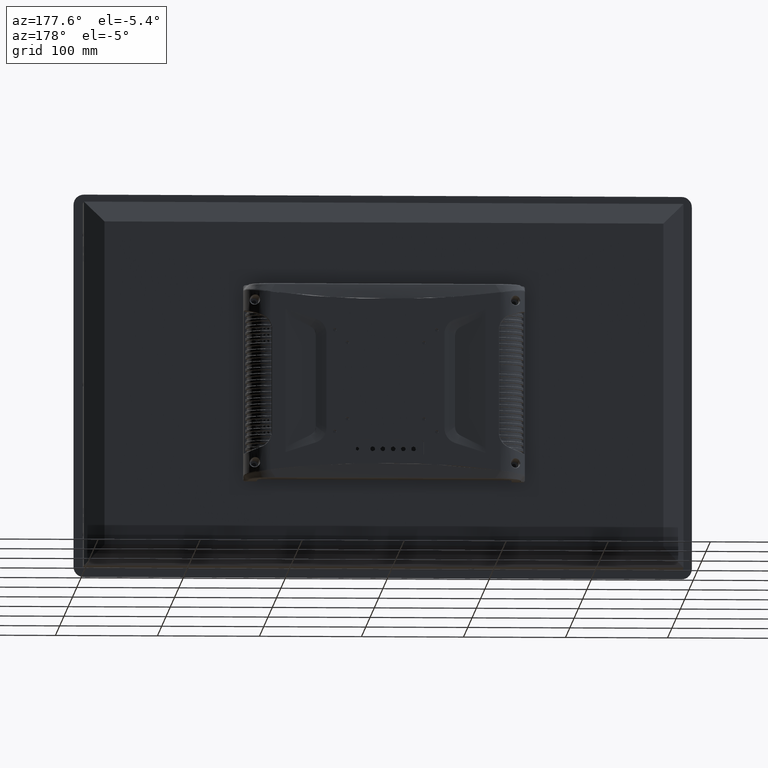
[diagram: clean part render]
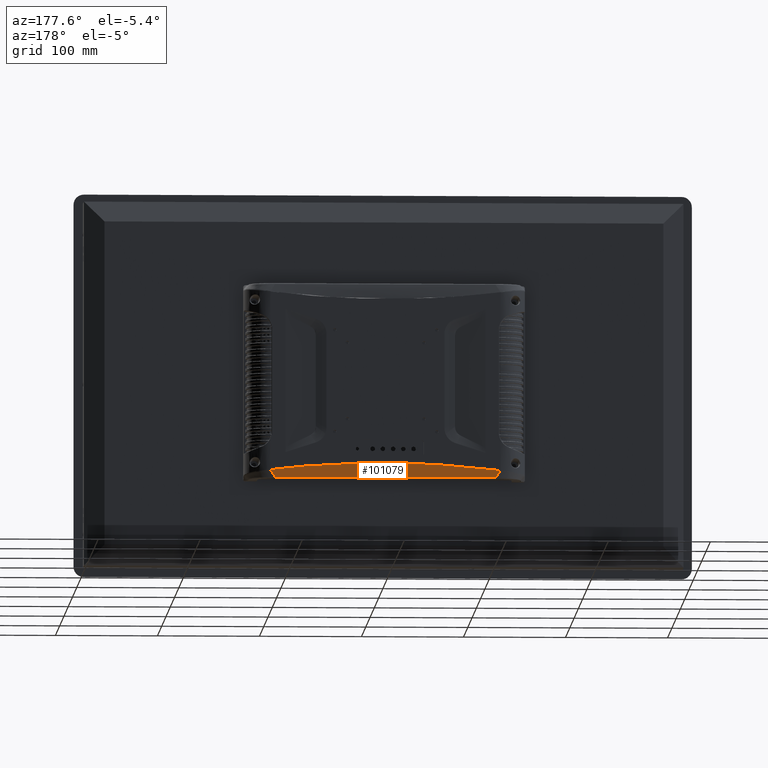
[diagram: same view with one face highlighted and labeled with its STEP entity id]
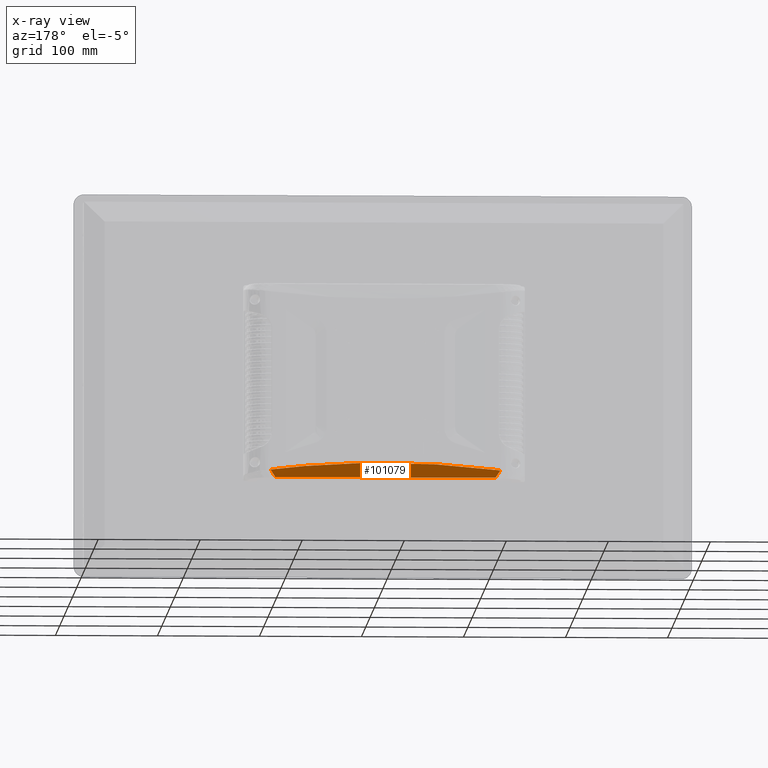
[diagram: x-ray of the same camera — body ghosted, the highlighted face saturated]
A machine part, auxiliary view. The second image highlights one B-rep face of the part: STEP entity #101079.
The next image is the same camera in x-ray: the body ghosted, the highlighted face saturated — about 0% of this face is hidden behind the body in this view.
In plain terms, the highlighted face is a freeform B-spline surface patch.
Its self-contained STEP definition (entity closure, byte-faithful):
#611 = VERTEX_POINT ( 'NONE', #91620 ) ;
#3746 = CARTESIAN_POINT ( 'NONE',  ( 115.9041079714904896, 60.56836528046000012, -87.72951740975457824 ) ) ;
#4114 = CARTESIAN_POINT ( 'NONE',  ( 114.0798286738208134, 60.05690783537000499, -90.36405418386432586 ) ) ;
#4382 = CARTESIAN_POINT ( 'NONE',  ( 109.5495207276544249, 59.60385091230349275, -92.54911158338154564 ) ) ;
#5727 = CARTESIAN_POINT ( 'NONE',  ( -84.53039714564710039, 60.49914019592802106, -84.64762496446412854 ) ) ;
#5938 = CARTESIAN_POINT ( 'NONE',  ( -110.4438447046482139, 59.03399294519000051, -95.63585468789437982 ) ) ;
#6297 = CARTESIAN_POINT ( 'NONE',  ( 37.28328646166766447, 59.03399294519000051, -95.50423110800319648 ) ) ;
#7201 = CARTESIAN_POINT ( 'NONE',  ( -56.53284913984147408, 60.50440234142563156, -82.45258613785468071 ) ) ;
#7323 = CARTESIAN_POINT ( 'NONE',  ( 108.0138415128456444, 59.16321139242381122, -94.93013978281884135 ) ) ;
#7909 = CARTESIAN_POINT ( 'NONE',  ( 51.46378806660304406, 60.50372079838483330, -82.08439155980403257 ) ) ;
#8416 = CARTESIAN_POINT ( 'NONE',  ( -90.02188901099995633, 59.13842805803961511, -94.89805126138999469 ) ) ;
#9017 = B_SPLINE_CURVE_WITH_KNOTS ( 'NONE', 3,
 ( #12938, #97937, #4382, #72429 ),
 .UNSPECIFIED., .F., .F.,
 ( 4, 4 ),
 ( 0.0000000000000000000, 1.000000000000000000 ),
 .UNSPECIFIED. ) ;
#12313 = CARTESIAN_POINT ( 'NONE',  ( -117.4137043968193126, 60.56836528046000012, -87.92614696338448255 ) ) ;
#12938 = CARTESIAN_POINT ( 'NONE',  ( 112.6208281790857768, 60.48509479061475247, -87.78699686294423543 ) ) ;
#13413 = CARTESIAN_POINT ( 'NONE',  ( -114.0929679925665567, 60.05690783537000499, -90.36160066381438583 ) ) ;
#14315 = CARTESIAN_POINT ( 'NONE',  ( -57.80748770651187129, 60.50426660309774718, -82.53346466161497119 ) ) ;
#15032 = CARTESIAN_POINT ( 'NONE',  ( -23.03735192105608931, 60.50607125909361628, -80.96227866097935078 ) ) ;
#15522 = CARTESIAN_POINT ( 'NONE',  ( 17.99800927257813754, 59.10142410780321853, -94.84995554884822866 ) ) ;
#15757 = CARTESIAN_POINT ( 'NONE',  ( -0.01958239028013692914, 60.50614677585779333, -80.68823496223429004 ) ) ;
#21965 = CARTESIAN_POINT ( 'NONE',  ( 112.6208281790857768, 60.48509479061475247, -87.78699686294423543 ) ) ;
#22813 = CARTESIAN_POINT ( 'NONE',  ( -112.6319617010832417, 60.48472011689666772, -87.78700870752710728 ) ) ;
#23579 = CARTESIAN_POINT ( 'NONE',  ( -56.61811702433575277, 60.50439348346828439, -82.45794697137968399 ) ) ;
#24300 = CARTESIAN_POINT ( 'NONE',  ( -112.6319617010832417, 60.48472011689666772, -87.78700870752710728 ) ) ;
#25751 = CARTESIAN_POINT ( 'NONE',  ( 27.62791122544825484, 60.50555502281591203, -81.03477886651394613 ) ) ;
#28518 = VERTEX_POINT ( 'NONE', #22813 ) ;
#29048 = CARTESIAN_POINT ( 'NONE',  ( 39.57199775014528598, 60.56836528046000012, -77.63677196985473472 ) ) ;
#31396 = CARTESIAN_POINT ( 'NONE',  ( -79.46034797451103771, 60.50055252576350995, -84.17668534438823258 ) ) ;
#31748 = CARTESIAN_POINT ( 'NONE',  ( -59.15675759345285911, 60.50411503931940160, -82.62081414589778205 ) ) ;
#32108 = CARTESIAN_POINT ( 'NONE',  ( -5.378778841326772309, 60.50617020624021336, -80.70147766042842363 ) ) ;
#32982 = CARTESIAN_POINT ( 'NONE',  ( -63.01708825651365942, 59.11785007348881749, -94.87104025709037103 ) ) ;
#37575 = CARTESIAN_POINT ( 'NONE',  ( -115.9175296365756793, 60.56836528046000012, -87.72447365176438439 ) ) ;
#39005 = EDGE_CURVE ( 'NONE', #28518, #50463, #62405, .T. ) ;
#39042 = CARTESIAN_POINT ( 'NONE',  ( -115.5685024855587528, 60.05690783537000499, -90.49692045849353406 ) ) ;
#39779 = CARTESIAN_POINT ( 'NONE',  ( -37.29519861133420733, 59.03399294519000051, -95.50515115820491019 ) ) ;
#40304 = CARTESIAN_POINT ( 'NONE',  ( -98.57221729250376541, 60.49413577511622719, -86.05646525584127460 ) ) ;
#40683 = CARTESIAN_POINT ( 'NONE',  ( -0.6862895078196311616, 60.50615072305299691, -80.68839814937412314 ) ) ;
#41053 = CARTESIAN_POINT ( 'NONE',  ( -2.713046871643993274, 60.50616094880494700, -80.69147793547531933 ) ) ;
#41186 = CARTESIAN_POINT ( 'NONE',  ( -18.00874092793451098, 59.10224996810566722, -94.85130288426360323 ) ) ;
#42275 = CARTESIAN_POINT ( 'NONE',  ( -72.01872537172764055, 59.12319757741412474, -94.87785965320331627 ) ) ;
#45384 = CARTESIAN_POINT ( 'NONE',  ( -112.6319617010832417, 60.48472011689666772, -87.78700870752710728 ) ) ;
#48124 = CARTESIAN_POINT ( 'NONE',  ( -56.49019955593841757, 60.50440676015802666, -82.44990740240737637 ) ) ;
#48859 = CARTESIAN_POINT ( 'NONE',  ( -56.45972914319172276, 60.50440991218710707, -82.44799471132387225 ) ) ;
#49211 = CARTESIAN_POINT ( 'NONE',  ( -0.1759236123590948442, 60.50614772697095134, -80.68823561412413881 ) ) ;
#49570 = CARTESIAN_POINT ( 'NONE',  ( -0.09071967096942823439, 60.50614721052667022, -80.68823244866527489 ) ) ;
#49710 = CARTESIAN_POINT ( 'NONE',  ( -99.02342964115852908, 59.14817876829094700, -94.91101315615802037 ) ) ;
#50463 = VERTEX_POINT ( 'NONE', #21965 ) ;
#50805 = EDGE_LOOP ( 'NONE', ( #86654, #52919, #94124, #89250 ) ) ;
#51400 = CARTESIAN_POINT ( 'NONE',  ( 102.6919010256160050, 60.49159114882736787, -86.55444032438323632 ) ) ;
#52919 = ORIENTED_EDGE ( 'NONE', *, *, #39005, .T. ) ;
#56647 = CARTESIAN_POINT ( 'NONE',  ( -42.23512382077966265, 60.50553848752720398, -81.62063869260747140 ) ) ;
#56861 = CARTESIAN_POINT ( 'NONE',  ( -112.2684063486573933, 59.54545039028000275, -92.99872767585441125 ) ) ;
#58087 = CARTESIAN_POINT ( 'NONE',  ( -0.02983491466011461285, 60.50614683867206622, -80.68823435073272776 ) ) ;
#58268 = B_SPLINE_SURFACE_WITH_KNOTS ( 'NONE', 3, 3, ( 
 ( #71442, #3746, #29048, #88471, #37575, #12313 ),
 ( #71796, #4114, #64693, #99516, #13413, #39042 ),
 ( #91348, #89898, #90257, #72899, #56861, #82140 ),
 ( #98394, #82849, #6297, #39779, #5938, #107694 ) ),
 .UNSPECIFIED., .F., .F., .F.,
 ( 4, 4 ),
 ( 4, 1, 1, 4 ),
 ( 0.0000000000000000000, 1.000000000000000000 ),
 ( 0.0000000000000000000, 0.01922153162013500588, 0.9807695147083179688, 1.000000000000000000 ),
 .UNSPECIFIED. ) ;
#58578 = CARTESIAN_POINT ( 'NONE',  ( -36.01212420722269769, 59.10558328600701827, -94.85543498623323444 ) ) ;
#58829 = CARTESIAN_POINT ( 'NONE',  ( 80.87465701876691071, 60.49889853165560538, -84.28680793347771782 ) ) ;
#59325 = CARTESIAN_POINT ( 'NONE',  ( 72.00797051463948151, 59.12055402015225525, -94.87306697802499400 ) ) ;
#62405 = B_SPLINE_CURVE_WITH_KNOTS ( 'NONE', 3,
 ( #24300, #65953, #40304, #5727, #31396, #83709, #90775, #65589, #82654, #31748, #14315, #99674, #74868, #23579, #7201, #48124, #91866, #48859, #66667, #108208, #107476, #56647, #65226, #15032, #74505, #73792, #82994, #32108, #41053, #91496, #40683, #100027, #49211, #49570, #108924, #58087, #15757, #84455, #25751, #7909, #67413, #58829, #85181, #51400, #92948, #67789 ),
 .UNSPECIFIED., .F., .F.,
 ( 4, 2, 2, 2, 1, 1, 1, 1, 1, 1, 1, 1, 1, 2, 2, 2, 2, 2, 1, 1, 1, 1, 1, 1, 1, 2, 2, 2, 2, 2, 4 ),
 ( 0.0000000000000000000, 0.1250000000000218436, 0.1875000000000328904, 0.2187500000000383860, 0.2343750000000411615, 0.2421875000000425493, 0.2460937500000431877, 0.2480468750000435485, 0.2490234375000436873, 0.2495117187500437705, 0.2497558593750438261, 0.2498779296875438816, 0.2499389648437939093, 0.2499694824219188816, 0.2500000000000438538, 0.3750000000000365263, 0.4375000000000328626, 0.4687500000000310307, 0.4843750000000300870, 0.4921875000000295874, 0.4960937500000294209, 0.4980468750000293099, 0.4990234375000292544, 0.4995117187500291989, 0.4997558593750291989, 0.4998779296875291989, 0.5000000000000290878, 0.6250000000000218714, 0.7500000000000145439, 0.8750000000000073275, 1.000000000000000000 ),
 .UNSPECIFIED. ) ;
#62738 = EDGE_CURVE ( 'NONE', #99734, #28518, #71945, .T. ) ;
#64693 = CARTESIAN_POINT ( 'NONE',  ( 38.80909398731608917, 60.05690783537000499, -83.59259168257756301 ) ) ;
#65226 = CARTESIAN_POINT ( 'NONE',  ( -28.12455167050657323, 60.50597236681172575, -81.10978694625205776 ) ) ;
#65589 = CARTESIAN_POINT ( 'NONE',  ( -64.05391768902710226, 60.50347714367929086, -82.95626616739443193 ) ) ;
#65953 = CARTESIAN_POINT ( 'NONE',  ( -106.3755575169719094, 60.48977625283447423, -86.98707808286562226 ) ) ;
#66437 = CARTESIAN_POINT ( 'NONE',  ( 99.01260125412261459, 59.14640201272587205, -94.90627334838440277 ) ) ;
#66667 = CARTESIAN_POINT ( 'NONE',  ( -56.45363448339175250, 60.50441054221479931, -82.44761223526754179 ) ) ;
#67413 = CARTESIAN_POINT ( 'NONE',  ( 62.11278960448815667, 60.50238950015273076, -82.78852366607306124 ) ) ;
#67789 = CARTESIAN_POINT ( 'NONE',  ( 112.6208281790857768, 60.48509479061475247, -87.78699686294423543 ) ) ;
#71442 = CARTESIAN_POINT ( 'NONE',  ( 117.3995775065985043, 60.56836528046000012, -87.93116068529023721 ) ) ;
#71796 = CARTESIAN_POINT ( 'NONE',  ( 115.5546704565763179, 60.05690783537000499, -90.49934174488862482 ) ) ;
#71945 = B_SPLINE_CURVE_WITH_KNOTS ( 'NONE', 3,
 ( #105063, #79569, #104690, #45384 ),
 .UNSPECIFIED., .F., .F.,
 ( 4, 4 ),
 ( 0.0000000000000000000, 1.000000000000000000 ),
 .UNSPECIFIED. ) ;
#72429 = CARTESIAN_POINT ( 'NONE',  ( 108.0138415128456444, 59.16321139242381122, -94.93013978281884135 ) ) ;
#72899 = CARTESIAN_POINT ( 'NONE',  ( -38.05822550651923564, 59.54545039028000275, -89.54842980656655982 ) ) ;
#73792 = CARTESIAN_POINT ( 'NONE',  ( -12.00024453583339756, 60.50616614182836628, -80.76178367220077803 ) ) ;
#74505 = CARTESIAN_POINT ( 'NONE',  ( -14.83140767753079992, 60.50615099629709448, -80.80400080188977086 ) ) ;
#74868 = CARTESIAN_POINT ( 'NONE',  ( -56.78852765982627204, 60.50437568558309920, -82.46868205828836551 ) ) ;
#75374 = CARTESIAN_POINT ( 'NONE',  ( 90.01108865194349562, 59.13617918386461270, -94.89312335153117317 ) ) ;
#79569 = CARTESIAN_POINT ( 'NONE',  ( -109.5604830116319448, 59.60352150908673963, -92.55067430739646284 ) ) ;
#82140 = CARTESIAN_POINT ( 'NONE',  ( -113.7233005742981504, 59.54545039028000275, -93.06769395360257136 ) ) ;
#82654 = CARTESIAN_POINT ( 'NONE',  ( -61.82326183023162258, 60.50379092731299835, -82.79871482615037337 ) ) ;
#82849 = CARTESIAN_POINT ( 'NONE',  ( 110.4312700783815302, 59.03399294519000051, -95.63312773208373585 ) ) ;
#82994 = CARTESIAN_POINT ( 'NONE',  ( -7.609871376184077718, 60.50617170982042126, -80.71827419363317802 ) ) ;
#83709 = CARTESIAN_POINT ( 'NONE',  ( -71.26977598751396670, 60.50228730486401929, -83.49838804651923851 ) ) ;
#83847 = CARTESIAN_POINT ( 'NONE',  ( 36.00139390570014086, 59.10387997474471433, -94.85267960330919834 ) ) ;
#84455 = CARTESIAN_POINT ( 'NONE',  ( 14.44060992789716025, 60.50605794901491663, -80.68944310997301272 ) ) ;
#85181 = CARTESIAN_POINT ( 'NONE',  ( 88.98786692191050918, 60.49673886139053280, -85.08086710161913402 ) ) ;
#86654 = ORIENTED_EDGE ( 'NONE', *, *, #62738, .T. ) ;
#88471 = CARTESIAN_POINT ( 'NONE',  ( -39.58427929687929492, 60.56836528046000012, -77.63498710330988217 ) ) ;
#89250 = ORIENTED_EDGE ( 'NONE', *, *, #90322, .F. ) ;
#89898 = CARTESIAN_POINT ( 'NONE',  ( 112.2555493760511922, 59.54545039028000275, -92.99859095797400244 ) ) ;
#90257 = CARTESIAN_POINT ( 'NONE',  ( 38.04619022449686128, 59.54545039028000275, -89.54841139529034422 ) ) ;
#90322 = EDGE_CURVE ( 'NONE', #99734, #611, #108287, .T. ) ;
#90741 = CARTESIAN_POINT ( 'NONE',  ( -108.0247693431444276, 59.16297251216256825, -94.93260211727019282 ) ) ;
#90775 = CARTESIAN_POINT ( 'NONE',  ( -68.44200992979641285, 60.50280161195538398, -83.27702297206631954 ) ) ;
#91348 = CARTESIAN_POINT ( 'NONE',  ( 113.7097634066541616, 59.54545039028000275, -93.06752280449697423 ) ) ;
#91496 = CARTESIAN_POINT ( 'NONE',  ( -1.364489884393763841, 60.50615444427274525, -80.68899529976337703 ) ) ;
#91620 = CARTESIAN_POINT ( 'NONE',  ( 108.0138415128456444, 59.16321139242381122, -94.93013978281884135 ) ) ;
#91866 = CARTESIAN_POINT ( 'NONE',  ( -56.46887085357689529, 60.50440896696258619, -82.44856845549176683 ) ) ;
#92357 = CARTESIAN_POINT ( 'NONE',  ( 63.00634110470529237, 59.11537533987014115, -94.86669651085746580 ) ) ;
#92948 = CARTESIAN_POINT ( 'NONE',  ( 108.2829776269062165, 60.48860310652927552, -87.23391322328249942 ) ) ;
#94124 = ORIENTED_EDGE ( 'NONE', *, *, #100464, .T. ) ;
#97937 = CARTESIAN_POINT ( 'NONE',  ( 111.0851763459930766, 60.04452589525808293, -90.16807217293114718 ) ) ;
#98394 = CARTESIAN_POINT ( 'NONE',  ( 111.8648563566319751, 59.03399294519000051, -95.63570386409530499 ) ) ;
#99516 = CARTESIAN_POINT ( 'NONE',  ( -38.82125240169426661, 60.05690783537000499, -83.59170845493822810 ) ) ;
#99674 = CARTESIAN_POINT ( 'NONE',  ( -57.12884839486583388, 60.50433976193068020, -82.49020566641220853 ) ) ;
#99734 = VERTEX_POINT ( 'NONE', #90741 ) ;
#100027 = CARTESIAN_POINT ( 'NONE',  ( -0.3462089610705120779, 60.50614874520471176, -80.68826248462725914 ) ) ;
#100464 = EDGE_CURVE ( 'NONE', #50463, #611, #9017, .T. ) ;
#101079 = ADVANCED_FACE ( 'NONE', ( #108424 ), #58268, .T. ) ;
#104690 = CARTESIAN_POINT ( 'NONE',  ( -111.0962161823917995, 60.04395749894975864, -90.16878427589372791 ) ) ;
#105063 = CARTESIAN_POINT ( 'NONE',  ( -108.0247693431444276, 59.16297251216256825, -94.93260211727019282 ) ) ;
#107476 = CARTESIAN_POINT ( 'NONE',  ( -50.10724507967744756, 60.50506629808585046, -82.04940474385152527 ) ) ;
#107694 = CARTESIAN_POINT ( 'NONE',  ( -111.8780986631375782, 59.03399294519000051, -95.63846744871160865 ) ) ;
#108208 = CARTESIAN_POINT ( 'NONE',  ( -56.44908746773026564, 60.50441101211659856, -82.44732691455268991 ) ) ;
#108287 = B_SPLINE_CURVE_WITH_KNOTS ( 'NONE', 3,
 ( #109424, #49710, #8416, #42275, #32982, #58578, #41186, #15522, #83847, #92357, #59325, #75374, #66437, #7323 ),
 .UNSPECIFIED., .F., .F.,
 ( 4, 2, 2, 2, 2, 2, 4 ),
 ( 0.0000000000000000000, 0.1249999727233056385, 0.2499999454466112769, 0.4999998908932224428, 0.7499998363398334700, 0.8749998090631390113, 0.9999997817864446636 ),
 .UNSPECIFIED. ) ;
#108424 = FACE_OUTER_BOUND ( 'NONE', #50805, .T. ) ;
#108924 = CARTESIAN_POINT ( 'NONE',  ( -0.05419056763175999353, 60.50614698762327492, -80.68823329585417525 ) ) ;
#109424 = CARTESIAN_POINT ( 'NONE',  ( -108.0247693431444276, 59.16297251216256825, -94.93260211727019282 ) ) ;